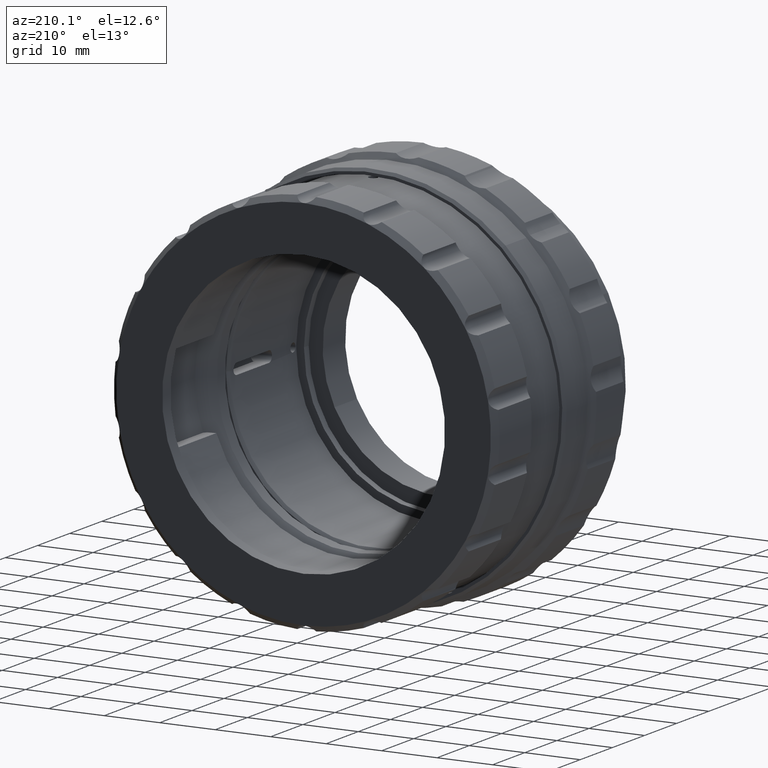
[diagram: clean part render]
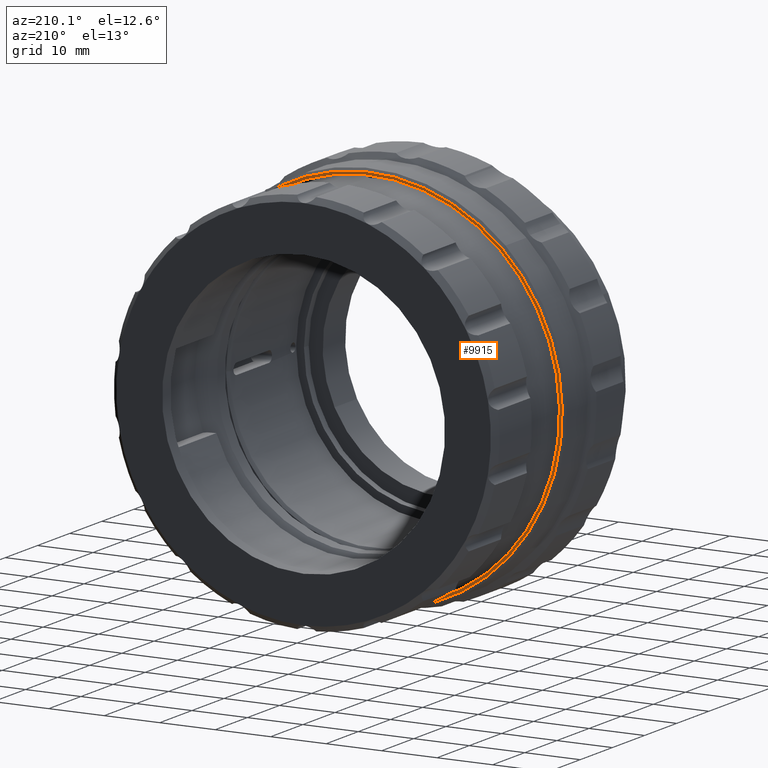
[diagram: same view with one face highlighted and labeled with its STEP entity id]
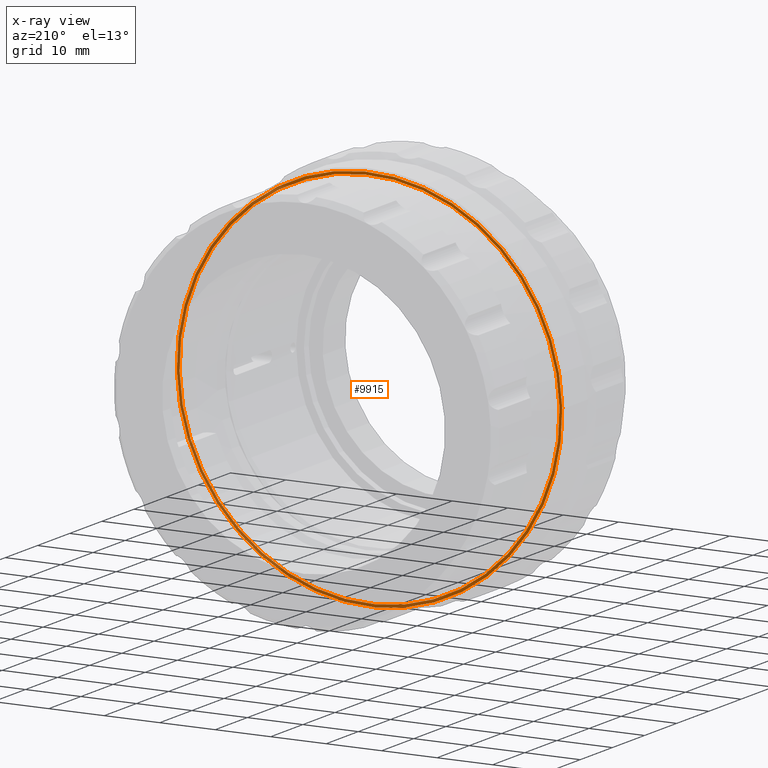
[diagram: x-ray of the same camera — body ghosted, the highlighted face saturated]
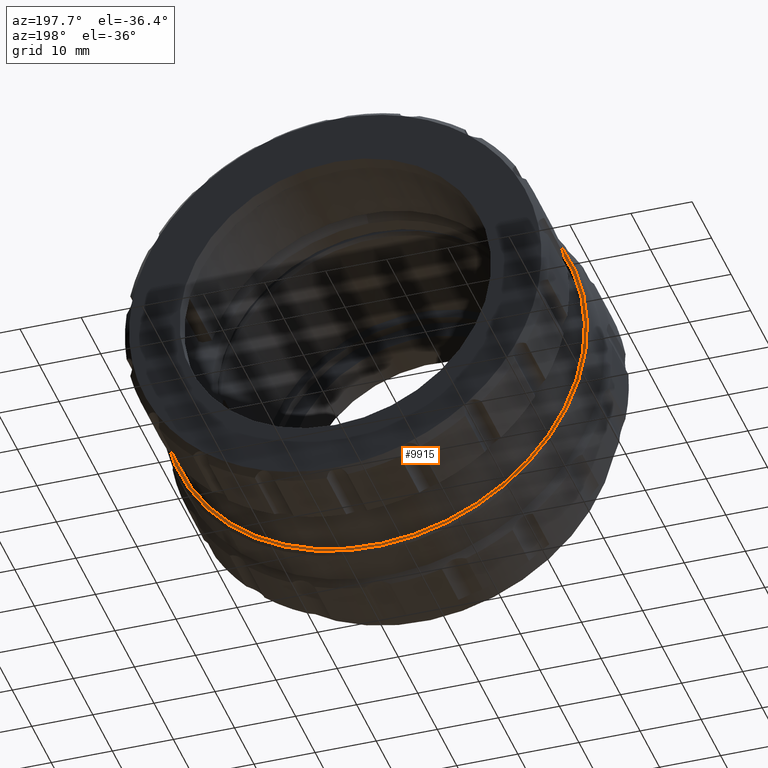
[diagram: same view with one face highlighted and labeled with its STEP entity id]
A machine part, auxiliary view. The second image highlights one B-rep face of the part: STEP entity #9915.
The next image is the same camera in x-ray: the body ghosted, the highlighted face saturated — about 48% of this face is hidden behind the body in this view.
A second angle (auxiliary view) of the same face is appended — the face is thin or edge-on in the first view.
In plain terms, the highlighted planar face has unit normal (0, -1, 0).
Its self-contained STEP definition (entity closure, byte-faithful):
#245 = DIRECTION ( 'NONE',  ( 0.000000000000000000, -1.000000000000000000, -0.000000000000000000 ) ) ;
#909 = CARTESIAN_POINT ( 'NONE',  ( -17.56479309047889004, -5.548755687005423987, 69.78494516256800750 ) ) ;
#1042 = PLANE ( 'NONE',  #3604 ) ;
#1194 = FACE_OUTER_BOUND ( 'NONE', #5077, .T. ) ;
#1555 = DIRECTION ( 'NONE',  ( 0.6871969081691013947, 0.000000000000000000, -0.7264712034229764415 ) ) ;
#1631 = CARTESIAN_POINT ( 'NONE',  ( 29.50819511910455617, -5.548755687005423987, 20.02166772809411910 ) ) ;
#2223 = VERTEX_POINT ( 'NONE', #5982 ) ;
#2321 = EDGE_LOOP ( 'NONE', ( #6856, #10139 ) ) ;
#2359 = CARTESIAN_POINT ( 'NONE',  ( 5.971701014312827738, -5.548755687005423987, 44.90330644533106863 ) ) ;
#2749 = CARTESIAN_POINT ( 'NONE',  ( 5.971701014312827738, -5.548755687005423987, 44.90330644533106863 ) ) ;
#2809 = CARTESIAN_POINT ( 'NONE',  ( 29.85179357318910220, -5.548755687005423987, 19.65843212638263182 ) ) ;
#3604 = AXIS2_PLACEMENT_3D ( 'NONE', #2749, #6007, #9263 ) ;
#3657 = DIRECTION ( 'NONE',  ( 0.6871969081691013947, 0.000000000000000000, -0.7264712034229764415 ) ) ;
#3875 = EDGE_CURVE ( 'NONE', #4518, #8157, #9337, .T. ) ;
#3953 = DIRECTION ( 'NONE',  ( 0.000000000000000000, -1.000000000000000000, -0.000000000000000000 ) ) ;
#4518 = VERTEX_POINT ( 'NONE', #1631 ) ;
#4737 = AXIS2_PLACEMENT_3D ( 'NONE', #9593, #7201, #5479 ) ;
#4876 = DIRECTION ( 'NONE',  ( 0.000000000000000000, -1.000000000000000000, -0.000000000000000000 ) ) ;
#5077 = EDGE_LOOP ( 'NONE', ( #6973, #8716 ) ) ;
#5479 = DIRECTION ( 'NONE',  ( 0.6871969081691013947, 0.000000000000000000, -0.7264712034229764415 ) ) ;
#5483 = CIRCLE ( 'NONE', #5978, 34.75000000000000000 ) ;
#5900 = FACE_BOUND ( 'NONE', #2321, .T. ) ;
#5978 = AXIS2_PLACEMENT_3D ( 'NONE', #6291, #3953, #1555 ) ;
#5982 = CARTESIAN_POINT ( 'NONE',  ( -17.90839154456344318, -5.548755687005423987, 70.14818076427950189 ) ) ;
#6007 = DIRECTION ( 'NONE',  ( 0.000000000000000000, -1.000000000000000000, 0.000000000000000000 ) ) ;
#6113 = EDGE_CURVE ( 'NONE', #9575, #2223, #5483, .T. ) ;
#6291 = CARTESIAN_POINT ( 'NONE',  ( 5.971701014312827738, -5.548755687005423987, 44.90330644533106863 ) ) ;
#6856 = ORIENTED_EDGE ( 'NONE', *, *, #3875, .T. ) ;
#6973 = ORIENTED_EDGE ( 'NONE', *, *, #6113, .F. ) ;
#7177 = DIRECTION ( 'NONE',  ( 0.6871969081691013947, 0.000000000000000000, -0.7264712034229764415 ) ) ;
#7201 = DIRECTION ( 'NONE',  ( 0.000000000000000000, -1.000000000000000000, -0.000000000000000000 ) ) ;
#7477 = EDGE_CURVE ( 'NONE', #8157, #4518, #9032, .T. ) ;
#7555 = EDGE_CURVE ( 'NONE', #2223, #9575, #8186, .T. ) ;
#7829 = AXIS2_PLACEMENT_3D ( 'NONE', #8481, #245, #3657 ) ;
#8157 = VERTEX_POINT ( 'NONE', #909 ) ;
#8186 = CIRCLE ( 'NONE', #9196, 34.75000000000000000 ) ;
#8481 = CARTESIAN_POINT ( 'NONE',  ( 5.971701014312827738, -5.548755687005423987, 44.90330644533106863 ) ) ;
#8716 = ORIENTED_EDGE ( 'NONE', *, *, #7555, .F. ) ;
#9032 = CIRCLE ( 'NONE', #7829, 34.25000000000000711 ) ;
#9196 = AXIS2_PLACEMENT_3D ( 'NONE', #2359, #4876, #7177 ) ;
#9263 = DIRECTION ( 'NONE',  ( 0.6871969081691013947, 0.000000000000000000, -0.7264712034229764415 ) ) ;
#9337 = CIRCLE ( 'NONE', #4737, 34.25000000000000711 ) ;
#9575 = VERTEX_POINT ( 'NONE', #2809 ) ;
#9593 = CARTESIAN_POINT ( 'NONE',  ( 5.971701014312827738, -5.548755687005423987, 44.90330644533106863 ) ) ;
#9915 = ADVANCED_FACE ( 'NONE', ( #1194, #5900 ), #1042, .F. ) ;
#10139 = ORIENTED_EDGE ( 'NONE', *, *, #7477, .T. ) ;